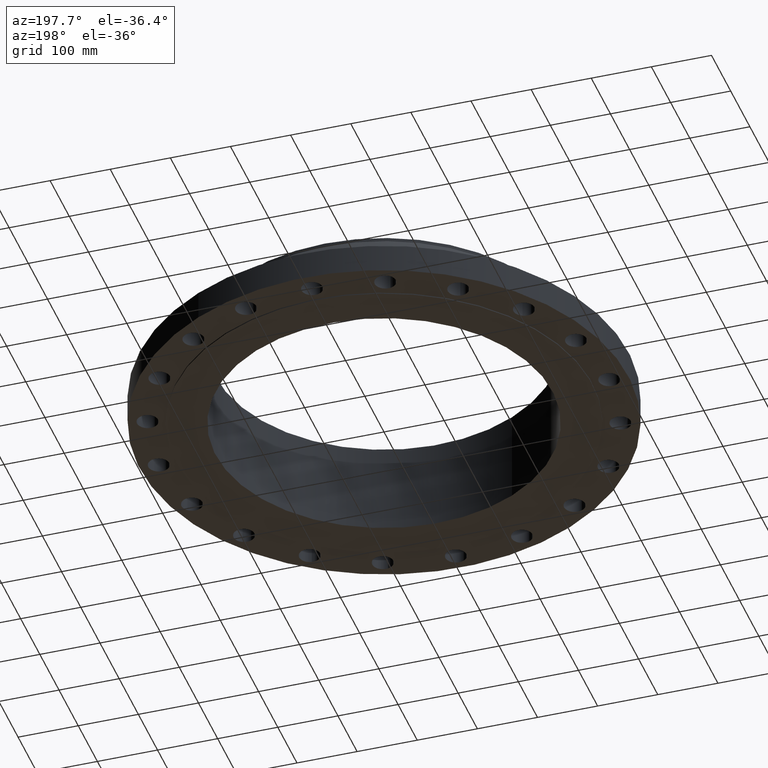
[diagram: clean part render]
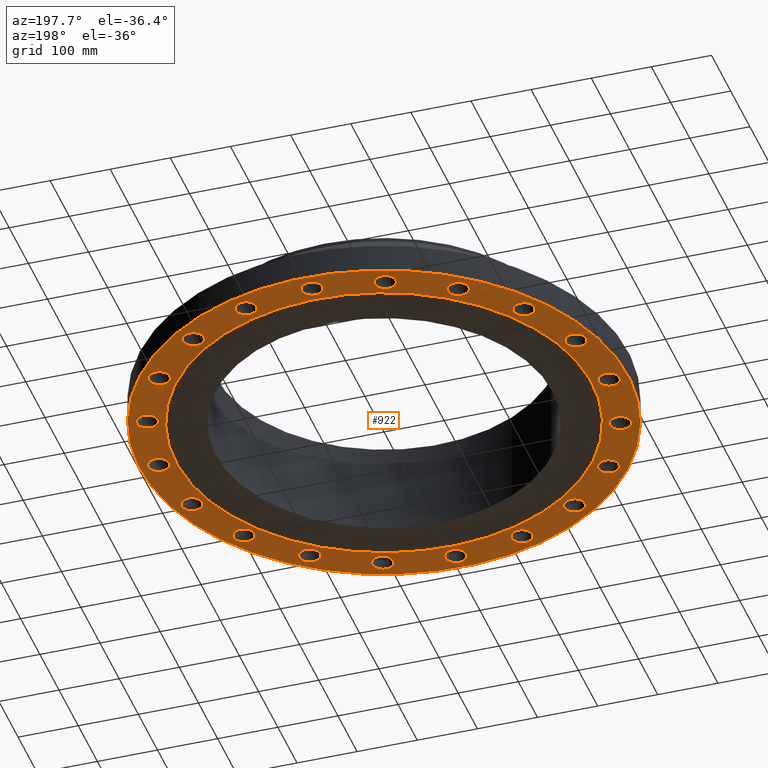
[diagram: same view with one face highlighted and labeled with its STEP entity id]
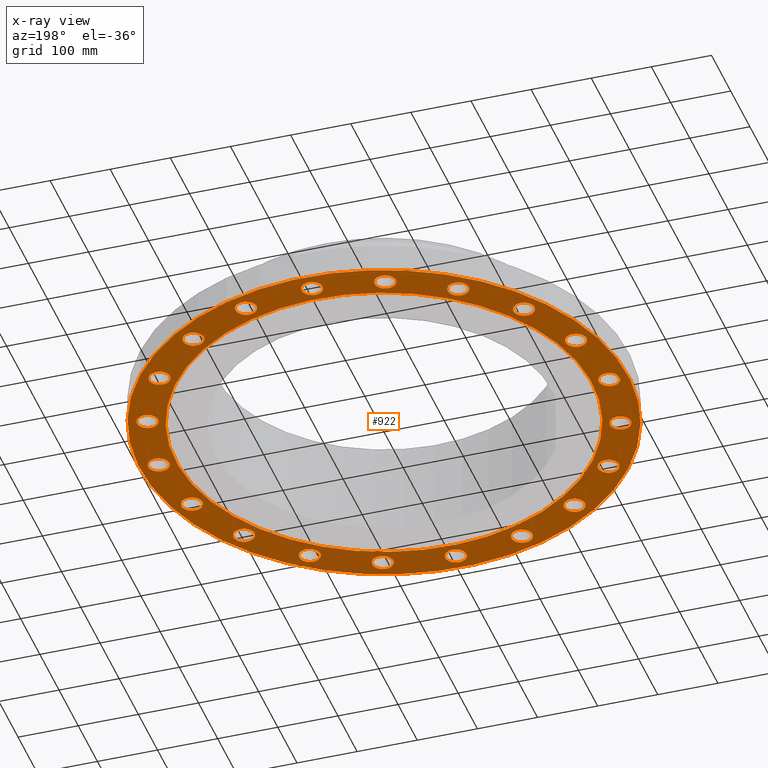
[diagram: x-ray of the same camera — body ghosted, the highlighted face saturated]
A machine part, auxiliary view. The second image highlights one B-rep face of the part: STEP entity #922.
The next image is the same camera in x-ray: the body ghosted, the highlighted face saturated — about 0% of this face is hidden behind the body in this view.
In plain terms, the highlighted planar face has unit normal (0, 0, -1).
Its self-contained STEP definition (entity closure, byte-faithful):
#51=AXIS2_PLACEMENT_3D('Circle Axis2P3D',#49,#50,$) ;
#77=AXIS2_PLACEMENT_3D('Circle Axis2P3D',#75,#76,$) ;
#99=AXIS2_PLACEMENT_3D('Circle Axis2P3D',#97,#98,$) ;
#134=AXIS2_PLACEMENT_3D('Circle Axis2P3D',#132,#133,$) ;
#534=AXIS2_PLACEMENT_3D('Circle Axis2P3D',#532,#533,$) ;
#553=AXIS2_PLACEMENT_3D('Circle Axis2P3D',#551,#552,$) ;
#566=AXIS2_PLACEMENT_3D('Plane Axis2P3D',#563,#564,#565) ;
#582=AXIS2_PLACEMENT_3D('Circle Axis2P3D',#580,#581,$) ;
#591=AXIS2_PLACEMENT_3D('Circle Axis2P3D',#589,#590,$) ;
#600=AXIS2_PLACEMENT_3D('Circle Axis2P3D',#598,#599,$) ;
#609=AXIS2_PLACEMENT_3D('Circle Axis2P3D',#607,#608,$) ;
#618=AXIS2_PLACEMENT_3D('Circle Axis2P3D',#616,#617,$) ;
#627=AXIS2_PLACEMENT_3D('Circle Axis2P3D',#625,#626,$) ;
#636=AXIS2_PLACEMENT_3D('Circle Axis2P3D',#634,#635,$) ;
#645=AXIS2_PLACEMENT_3D('Circle Axis2P3D',#643,#644,$) ;
#654=AXIS2_PLACEMENT_3D('Circle Axis2P3D',#652,#653,$) ;
#663=AXIS2_PLACEMENT_3D('Circle Axis2P3D',#661,#662,$) ;
#672=AXIS2_PLACEMENT_3D('Circle Axis2P3D',#670,#671,$) ;
#681=AXIS2_PLACEMENT_3D('Circle Axis2P3D',#679,#680,$) ;
#690=AXIS2_PLACEMENT_3D('Circle Axis2P3D',#688,#689,$) ;
#699=AXIS2_PLACEMENT_3D('Circle Axis2P3D',#697,#698,$) ;
#708=AXIS2_PLACEMENT_3D('Circle Axis2P3D',#706,#707,$) ;
#717=AXIS2_PLACEMENT_3D('Circle Axis2P3D',#715,#716,$) ;
#726=AXIS2_PLACEMENT_3D('Circle Axis2P3D',#724,#725,$) ;
#735=AXIS2_PLACEMENT_3D('Circle Axis2P3D',#733,#734,$) ;
#744=AXIS2_PLACEMENT_3D('Circle Axis2P3D',#742,#743,$) ;
#753=AXIS2_PLACEMENT_3D('Circle Axis2P3D',#751,#752,$) ;
#762=AXIS2_PLACEMENT_3D('Circle Axis2P3D',#760,#761,$) ;
#771=AXIS2_PLACEMENT_3D('Circle Axis2P3D',#769,#770,$) ;
#780=AXIS2_PLACEMENT_3D('Circle Axis2P3D',#778,#779,$) ;
#789=AXIS2_PLACEMENT_3D('Circle Axis2P3D',#787,#788,$) ;
#798=AXIS2_PLACEMENT_3D('Circle Axis2P3D',#796,#797,$) ;
#807=AXIS2_PLACEMENT_3D('Circle Axis2P3D',#805,#806,$) ;
#816=AXIS2_PLACEMENT_3D('Circle Axis2P3D',#814,#815,$) ;
#825=AXIS2_PLACEMENT_3D('Circle Axis2P3D',#823,#824,$) ;
#834=AXIS2_PLACEMENT_3D('Circle Axis2P3D',#832,#833,$) ;
#843=AXIS2_PLACEMENT_3D('Circle Axis2P3D',#841,#842,$) ;
#852=AXIS2_PLACEMENT_3D('Circle Axis2P3D',#850,#851,$) ;
#861=AXIS2_PLACEMENT_3D('Circle Axis2P3D',#859,#860,$) ;
#870=AXIS2_PLACEMENT_3D('Circle Axis2P3D',#868,#869,$) ;
#879=AXIS2_PLACEMENT_3D('Circle Axis2P3D',#877,#878,$) ;
#888=AXIS2_PLACEMENT_3D('Circle Axis2P3D',#886,#887,$) ;
#897=AXIS2_PLACEMENT_3D('Circle Axis2P3D',#895,#896,$) ;
#906=AXIS2_PLACEMENT_3D('Circle Axis2P3D',#904,#905,$) ;
#915=AXIS2_PLACEMENT_3D('Circle Axis2P3D',#913,#914,$) ;
#44=CARTESIAN_POINT('Vertex',(14.1444680324,0.330803621638,0.)) ;
#49=CARTESIAN_POINT('Axis2P3D Location',(14.7500000001,0.,0.)) ;
#53=CARTESIAN_POINT('Vertex',(15.3555319678,-0.330803621638,0.)) ;
#75=CARTESIAN_POINT('Axis2P3D Location',(14.7500000001,0.,0.)) ;
#97=CARTESIAN_POINT('Axis2P3D Location',(0.,0.,1.67844740731E-015)) ;
#101=CARTESIAN_POINT('Vertex',(-7.6708086177,-14.0413209903,2.23792987641E-015)) ;
#103=CARTESIAN_POINT('Vertex',(7.6708086177,14.0413209903,2.23792987641E-015)) ;
#132=CARTESIAN_POINT('Axis2P3D Location',(0.,0.,1.67844740731E-015)) ;
#529=CARTESIAN_POINT('Vertex',(-6.53217296351,-11.9570624058,2.23792987641E-015)) ;
#532=CARTESIAN_POINT('Axis2P3D Location',(0.,0.,1.67844740731E-015)) ;
#536=CARTESIAN_POINT('Vertex',(6.53217296351,11.9570624058,2.23792987641E-015)) ;
#551=CARTESIAN_POINT('Axis2P3D Location',(0.,0.,1.67844740731E-015)) ;
#563=CARTESIAN_POINT('Axis2P3D Location',(0.,13.6250000001,0.)) ;
#580=CARTESIAN_POINT('Axis2P3D Location',(14.0280836154,-4.55800066705,0.)) ;
#584=CARTESIAN_POINT('Vertex',(13.5544124326,-4.05626805842,0.)) ;
#586=CARTESIAN_POINT('Vertex',(14.5017547982,-5.05973327568,0.)) ;
#589=CARTESIAN_POINT('Axis2P3D Location',(14.0280836154,-4.55800066705,0.)) ;
#598=CARTESIAN_POINT('Axis2P3D Location',(11.9330006671,-8.66983247135,0.)) ;
#602=CARTESIAN_POINT('Vertex',(11.6375565048,-8.04628395923,0.)) ;
#604=CARTESIAN_POINT('Vertex',(12.2284448294,-9.29338098346,-1.95818864186E-015)) ;
#607=CARTESIAN_POINT('Axis2P3D Location',(11.9330006671,-8.66983247135,0.)) ;
#616=CARTESIAN_POINT('Axis2P3D Location',(8.66983247135,-11.9330006671,0.)) ;
#620=CARTESIAN_POINT('Vertex',(8.58153546265,-11.2486735244,0.)) ;
#622=CARTESIAN_POINT('Vertex',(8.75812948005,-12.6173278098,0.)) ;
#625=CARTESIAN_POINT('Axis2P3D Location',(8.66983247135,-11.9330006671,0.)) ;
#634=CARTESIAN_POINT('Axis2P3D Location',(4.55800066705,-14.0280836154,0.)) ;
#638=CARTESIAN_POINT('Vertex',(4.68549393836,-13.3499645508,0.)) ;
#640=CARTESIAN_POINT('Vertex',(4.43050739573,-14.70620268,0.)) ;
#643=CARTESIAN_POINT('Axis2P3D Location',(4.55800066705,-14.0280836154,0.)) ;
#652=CARTESIAN_POINT('Axis2P3D Location',(4.12618320963E-015,-14.7500000001,0.)) ;
#656=CARTESIAN_POINT('Vertex',(0.330803621638,-14.1444680324,0.)) ;
#658=CARTESIAN_POINT('Vertex',(-0.330803621638,-15.3555319678,0.)) ;
#661=CARTESIAN_POINT('Axis2P3D Location',(4.33598913554E-015,-14.7500000001,0.)) ;
#670=CARTESIAN_POINT('Axis2P3D Location',(-4.55800066705,-14.0280836154,0.)) ;
#674=CARTESIAN_POINT('Vertex',(-4.05626805842,-13.5544124326,0.)) ;
#676=CARTESIAN_POINT('Vertex',(-5.05973327568,-14.5017547982,0.)) ;
#679=CARTESIAN_POINT('Axis2P3D Location',(-4.55800066705,-14.0280836154,0.)) ;
#688=CARTESIAN_POINT('Axis2P3D Location',(-8.66983247135,-11.9330006671,0.)) ;
#692=CARTESIAN_POINT('Vertex',(-8.04628395923,-11.6375565048,0.)) ;
#694=CARTESIAN_POINT('Vertex',(-9.29338098346,-12.2284448294,0.)) ;
#697=CARTESIAN_POINT('Axis2P3D Location',(-8.66983247135,-11.9330006671,0.)) ;
#706=CARTESIAN_POINT('Axis2P3D Location',(-11.9330006671,-8.66983247135,0.)) ;
#710=CARTESIAN_POINT('Vertex',(-11.2486735244,-8.58153546265,0.)) ;
#712=CARTESIAN_POINT('Vertex',(-12.6173278098,-8.75812948005,0.)) ;
#715=CARTESIAN_POINT('Axis2P3D Location',(-11.9330006671,-8.66983247135,0.)) ;
#724=CARTESIAN_POINT('Axis2P3D Location',(-14.0280836154,-4.55800066705,0.)) ;
#728=CARTESIAN_POINT('Vertex',(-13.3499645508,-4.68549393836,0.)) ;
#730=CARTESIAN_POINT('Vertex',(-14.70620268,-4.43050739573,0.)) ;
#733=CARTESIAN_POINT('Axis2P3D Location',(-14.0280836154,-4.55800066705,0.)) ;
#742=CARTESIAN_POINT('Axis2P3D Location',(-14.7500000001,-8.95171950564E-015,0.)) ;
#746=CARTESIAN_POINT('Vertex',(-14.1444680324,-0.330803621638,0.)) ;
#748=CARTESIAN_POINT('Vertex',(-15.3555319678,0.330803621638,0.)) ;
#751=CARTESIAN_POINT('Axis2P3D Location',(-14.7500000001,-8.95171950564E-015,0.)) ;
#760=CARTESIAN_POINT('Axis2P3D Location',(-14.0280836154,4.55800066705,0.)) ;
#764=CARTESIAN_POINT('Vertex',(-13.5544124326,4.05626805842,0.)) ;
#766=CARTESIAN_POINT('Vertex',(-14.5017547982,5.05973327568,0.)) ;
#769=CARTESIAN_POINT('Axis2P3D Location',(-14.0280836154,4.55800066705,0.)) ;
#778=CARTESIAN_POINT('Axis2P3D Location',(-11.9330006671,8.66983247135,0.)) ;
#782=CARTESIAN_POINT('Vertex',(-11.6375565048,8.04628395923,0.)) ;
#784=CARTESIAN_POINT('Vertex',(-12.2284448294,9.29338098346,-1.95818864186E-015)) ;
#787=CARTESIAN_POINT('Axis2P3D Location',(-11.9330006671,8.66983247135,0.)) ;
#796=CARTESIAN_POINT('Axis2P3D Location',(-8.66983247135,11.9330006671,0.)) ;
#800=CARTESIAN_POINT('Vertex',(-8.58153546265,11.2486735244,0.)) ;
#802=CARTESIAN_POINT('Vertex',(-8.75812948005,12.6173278098,0.)) ;
#805=CARTESIAN_POINT('Axis2P3D Location',(-8.66983247135,11.9330006671,0.)) ;
#814=CARTESIAN_POINT('Axis2P3D Location',(-4.55800066705,14.0280836154,0.)) ;
#818=CARTESIAN_POINT('Vertex',(-4.68549393836,13.3499645508,0.)) ;
#820=CARTESIAN_POINT('Vertex',(-4.43050739573,14.70620268,-1.95818864186E-015)) ;
#823=CARTESIAN_POINT('Axis2P3D Location',(-4.55800066705,14.0280836154,0.)) ;
#832=CARTESIAN_POINT('Axis2P3D Location',(-1.61550562953E-014,14.7500000001,0.)) ;
#836=CARTESIAN_POINT('Vertex',(-0.330803621638,14.1444680324,0.)) ;
#838=CARTESIAN_POINT('Vertex',(0.330803621638,15.3555319678,0.)) ;
#841=CARTESIAN_POINT('Axis2P3D Location',(-1.5455703209E-014,14.7500000001,0.)) ;
#850=CARTESIAN_POINT('Axis2P3D Location',(4.55800066705,14.0280836154,0.)) ;
#854=CARTESIAN_POINT('Vertex',(4.05626805842,13.5544124326,0.)) ;
#856=CARTESIAN_POINT('Vertex',(5.05973327568,14.5017547982,-1.95818864186E-015)) ;
#859=CARTESIAN_POINT('Axis2P3D Location',(4.55800066705,14.0280836154,0.)) ;
#868=CARTESIAN_POINT('Axis2P3D Location',(8.66983247135,11.9330006671,0.)) ;
#872=CARTESIAN_POINT('Vertex',(8.04628395923,11.6375565048,0.)) ;
#874=CARTESIAN_POINT('Vertex',(9.29338098346,12.2284448294,0.)) ;
#877=CARTESIAN_POINT('Axis2P3D Location',(8.66983247135,11.9330006671,0.)) ;
#886=CARTESIAN_POINT('Axis2P3D Location',(11.9330006671,8.66983247135,0.)) ;
#890=CARTESIAN_POINT('Vertex',(11.2486735244,8.58153546265,0.)) ;
#892=CARTESIAN_POINT('Vertex',(12.6173278098,8.75812948005,0.)) ;
#895=CARTESIAN_POINT('Axis2P3D Location',(11.9330006671,8.66983247135,0.)) ;
#904=CARTESIAN_POINT('Axis2P3D Location',(14.0280836154,4.55800066705,0.)) ;
#908=CARTESIAN_POINT('Vertex',(13.3499645508,4.68549393836,0.)) ;
#910=CARTESIAN_POINT('Vertex',(14.70620268,4.43050739573,-1.95818864186E-015)) ;
#913=CARTESIAN_POINT('Axis2P3D Location',(14.0280836154,4.55800066705,0.)) ;
#50=DIRECTION('Axis2P3D Direction',(0.,-0.,-0.0393700787402)) ;
#76=DIRECTION('Axis2P3D Direction',(0.,-0.,-0.0393700787402)) ;
#98=DIRECTION('Axis2P3D Direction',(0.,0.,-0.0393700787402)) ;
#133=DIRECTION('Axis2P3D Direction',(0.,0.,-0.0393700787402)) ;
#533=DIRECTION('Axis2P3D Direction',(0.,0.,-0.0393700787402)) ;
#552=DIRECTION('Axis2P3D Direction',(0.,0.,-0.0393700787402)) ;
#564=DIRECTION('Axis2P3D Direction',(0.,0.,-0.0393700787402)) ;
#565=DIRECTION('Axis2P3D XDirection',(0.0393700787402,0.,0.)) ;
#581=DIRECTION('Axis2P3D Direction',(0.,0.,-0.0393700787402)) ;
#590=DIRECTION('Axis2P3D Direction',(0.,0.,-0.0393700787402)) ;
#599=DIRECTION('Axis2P3D Direction',(0.,0.,-0.0393700787402)) ;
#608=DIRECTION('Axis2P3D Direction',(0.,0.,-0.0393700787402)) ;
#617=DIRECTION('Axis2P3D Direction',(0.,0.,-0.0393700787402)) ;
#626=DIRECTION('Axis2P3D Direction',(0.,0.,-0.0393700787402)) ;
#635=DIRECTION('Axis2P3D Direction',(0.,0.,-0.0393700787402)) ;
#644=DIRECTION('Axis2P3D Direction',(0.,0.,-0.0393700787402)) ;
#653=DIRECTION('Axis2P3D Direction',(0.,0.,-0.0393700787402)) ;
#662=DIRECTION('Axis2P3D Direction',(0.,0.,-0.0393700787402)) ;
#671=DIRECTION('Axis2P3D Direction',(0.,0.,-0.0393700787402)) ;
#680=DIRECTION('Axis2P3D Direction',(0.,0.,-0.0393700787402)) ;
#689=DIRECTION('Axis2P3D Direction',(0.,0.,-0.0393700787402)) ;
#698=DIRECTION('Axis2P3D Direction',(0.,0.,-0.0393700787402)) ;
#707=DIRECTION('Axis2P3D Direction',(0.,0.,-0.0393700787402)) ;
#716=DIRECTION('Axis2P3D Direction',(0.,0.,-0.0393700787402)) ;
#725=DIRECTION('Axis2P3D Direction',(0.,0.,-0.0393700787402)) ;
#734=DIRECTION('Axis2P3D Direction',(0.,0.,-0.0393700787402)) ;
#743=DIRECTION('Axis2P3D Direction',(0.,0.,-0.0393700787402)) ;
#752=DIRECTION('Axis2P3D Direction',(0.,0.,-0.0393700787402)) ;
#761=DIRECTION('Axis2P3D Direction',(0.,0.,-0.0393700787402)) ;
#770=DIRECTION('Axis2P3D Direction',(0.,0.,-0.0393700787402)) ;
#779=DIRECTION('Axis2P3D Direction',(0.,0.,-0.0393700787402)) ;
#788=DIRECTION('Axis2P3D Direction',(0.,0.,-0.0393700787402)) ;
#797=DIRECTION('Axis2P3D Direction',(0.,0.,-0.0393700787402)) ;
#806=DIRECTION('Axis2P3D Direction',(0.,0.,-0.0393700787402)) ;
#815=DIRECTION('Axis2P3D Direction',(0.,0.,-0.0393700787402)) ;
#824=DIRECTION('Axis2P3D Direction',(0.,0.,-0.0393700787402)) ;
#833=DIRECTION('Axis2P3D Direction',(0.,0.,-0.0393700787402)) ;
#842=DIRECTION('Axis2P3D Direction',(0.,0.,-0.0393700787402)) ;
#851=DIRECTION('Axis2P3D Direction',(0.,0.,-0.0393700787402)) ;
#860=DIRECTION('Axis2P3D Direction',(0.,0.,-0.0393700787402)) ;
#869=DIRECTION('Axis2P3D Direction',(0.,0.,-0.0393700787402)) ;
#878=DIRECTION('Axis2P3D Direction',(0.,0.,-0.0393700787402)) ;
#887=DIRECTION('Axis2P3D Direction',(0.,0.,-0.0393700787402)) ;
#896=DIRECTION('Axis2P3D Direction',(0.,0.,-0.0393700787402)) ;
#905=DIRECTION('Axis2P3D Direction',(0.,0.,-0.0393700787402)) ;
#914=DIRECTION('Axis2P3D Direction',(0.,0.,-0.0393700787402)) ;
#569=ORIENTED_EDGE('',*,*,#105,.T.) ;
#570=ORIENTED_EDGE('',*,*,#136,.T.) ;
#573=ORIENTED_EDGE('',*,*,#79,.F.) ;
#574=ORIENTED_EDGE('',*,*,#55,.F.) ;
#577=ORIENTED_EDGE('',*,*,#555,.F.) ;
#578=ORIENTED_EDGE('',*,*,#538,.F.) ;
#595=ORIENTED_EDGE('',*,*,#588,.F.) ;
#596=ORIENTED_EDGE('',*,*,#593,.F.) ;
#613=ORIENTED_EDGE('',*,*,#606,.F.) ;
#614=ORIENTED_EDGE('',*,*,#611,.F.) ;
#631=ORIENTED_EDGE('',*,*,#624,.F.) ;
#632=ORIENTED_EDGE('',*,*,#629,.F.) ;
#649=ORIENTED_EDGE('',*,*,#642,.F.) ;
#650=ORIENTED_EDGE('',*,*,#647,.F.) ;
#667=ORIENTED_EDGE('',*,*,#660,.F.) ;
#668=ORIENTED_EDGE('',*,*,#665,.F.) ;
#685=ORIENTED_EDGE('',*,*,#678,.F.) ;
#686=ORIENTED_EDGE('',*,*,#683,.F.) ;
#703=ORIENTED_EDGE('',*,*,#696,.F.) ;
#704=ORIENTED_EDGE('',*,*,#701,.F.) ;
#721=ORIENTED_EDGE('',*,*,#714,.F.) ;
#722=ORIENTED_EDGE('',*,*,#719,.F.) ;
#739=ORIENTED_EDGE('',*,*,#732,.F.) ;
#740=ORIENTED_EDGE('',*,*,#737,.F.) ;
#757=ORIENTED_EDGE('',*,*,#750,.F.) ;
#758=ORIENTED_EDGE('',*,*,#755,.F.) ;
#775=ORIENTED_EDGE('',*,*,#768,.F.) ;
#776=ORIENTED_EDGE('',*,*,#773,.F.) ;
#793=ORIENTED_EDGE('',*,*,#786,.F.) ;
#794=ORIENTED_EDGE('',*,*,#791,.F.) ;
#811=ORIENTED_EDGE('',*,*,#804,.F.) ;
#812=ORIENTED_EDGE('',*,*,#809,.F.) ;
#829=ORIENTED_EDGE('',*,*,#822,.F.) ;
#830=ORIENTED_EDGE('',*,*,#827,.F.) ;
#847=ORIENTED_EDGE('',*,*,#840,.F.) ;
#848=ORIENTED_EDGE('',*,*,#845,.F.) ;
#865=ORIENTED_EDGE('',*,*,#858,.F.) ;
#866=ORIENTED_EDGE('',*,*,#863,.F.) ;
#883=ORIENTED_EDGE('',*,*,#876,.F.) ;
#884=ORIENTED_EDGE('',*,*,#881,.F.) ;
#901=ORIENTED_EDGE('',*,*,#894,.F.) ;
#902=ORIENTED_EDGE('',*,*,#899,.F.) ;
#919=ORIENTED_EDGE('',*,*,#912,.F.) ;
#920=ORIENTED_EDGE('',*,*,#917,.F.) ;
#575=FACE_BOUND('',#572,.T.) ;
#579=FACE_BOUND('',#576,.T.) ;
#597=FACE_BOUND('',#594,.T.) ;
#615=FACE_BOUND('',#612,.T.) ;
#633=FACE_BOUND('',#630,.T.) ;
#651=FACE_BOUND('',#648,.T.) ;
#669=FACE_BOUND('',#666,.T.) ;
#687=FACE_BOUND('',#684,.T.) ;
#705=FACE_BOUND('',#702,.T.) ;
#723=FACE_BOUND('',#720,.T.) ;
#741=FACE_BOUND('',#738,.T.) ;
#759=FACE_BOUND('',#756,.T.) ;
#777=FACE_BOUND('',#774,.T.) ;
#795=FACE_BOUND('',#792,.T.) ;
#813=FACE_BOUND('',#810,.T.) ;
#831=FACE_BOUND('',#828,.T.) ;
#849=FACE_BOUND('',#846,.T.) ;
#867=FACE_BOUND('',#864,.T.) ;
#885=FACE_BOUND('',#882,.T.) ;
#903=FACE_BOUND('',#900,.T.) ;
#921=FACE_BOUND('',#918,.T.) ;
#922=ADVANCED_FACE('PartBody',(#571,#575,#579,#597,#615,#633,#651,#669,#687,#705,#723,#741,#759,#777,#795,#813,#831,#849,#867,#885,#903,#921),#567,.T.) ;
#52=CIRCLE('generated circle',#51,0.690000000003) ;
#78=CIRCLE('generated circle',#77,0.690000000003) ;
#100=CIRCLE('generated circle',#99,16.0000000001) ;
#135=CIRCLE('generated circle',#134,16.0000000001) ;
#535=CIRCLE('generated circle',#534,13.6250000001) ;
#554=CIRCLE('generated circle',#553,13.6250000001) ;
#583=CIRCLE('generated circle',#582,0.690000000003) ;
#592=CIRCLE('generated circle',#591,0.690000000003) ;
#601=CIRCLE('generated circle',#600,0.690000000003) ;
#610=CIRCLE('generated circle',#609,0.690000000003) ;
#619=CIRCLE('generated circle',#618,0.690000000003) ;
#628=CIRCLE('generated circle',#627,0.690000000003) ;
#637=CIRCLE('generated circle',#636,0.690000000003) ;
#646=CIRCLE('generated circle',#645,0.690000000003) ;
#655=CIRCLE('generated circle',#654,0.690000000003) ;
#664=CIRCLE('generated circle',#663,0.690000000003) ;
#673=CIRCLE('generated circle',#672,0.690000000003) ;
#682=CIRCLE('generated circle',#681,0.690000000003) ;
#691=CIRCLE('generated circle',#690,0.690000000003) ;
#700=CIRCLE('generated circle',#699,0.690000000003) ;
#709=CIRCLE('generated circle',#708,0.690000000003) ;
#718=CIRCLE('generated circle',#717,0.690000000003) ;
#727=CIRCLE('generated circle',#726,0.690000000003) ;
#736=CIRCLE('generated circle',#735,0.690000000003) ;
#745=CIRCLE('generated circle',#744,0.690000000003) ;
#754=CIRCLE('generated circle',#753,0.690000000003) ;
#763=CIRCLE('generated circle',#762,0.690000000003) ;
#772=CIRCLE('generated circle',#771,0.690000000003) ;
#781=CIRCLE('generated circle',#780,0.690000000003) ;
#790=CIRCLE('generated circle',#789,0.690000000003) ;
#799=CIRCLE('generated circle',#798,0.690000000003) ;
#808=CIRCLE('generated circle',#807,0.690000000003) ;
#817=CIRCLE('generated circle',#816,0.690000000003) ;
#826=CIRCLE('generated circle',#825,0.690000000003) ;
#835=CIRCLE('generated circle',#834,0.690000000003) ;
#844=CIRCLE('generated circle',#843,0.690000000003) ;
#853=CIRCLE('generated circle',#852,0.690000000003) ;
#862=CIRCLE('generated circle',#861,0.690000000003) ;
#871=CIRCLE('generated circle',#870,0.690000000003) ;
#880=CIRCLE('generated circle',#879,0.690000000003) ;
#889=CIRCLE('generated circle',#888,0.690000000003) ;
#898=CIRCLE('generated circle',#897,0.690000000003) ;
#907=CIRCLE('generated circle',#906,0.690000000003) ;
#916=CIRCLE('generated circle',#915,0.690000000003) ;
#55=EDGE_CURVE('',#45,#54,#52,.T.) ;
#79=EDGE_CURVE('',#54,#45,#78,.T.) ;
#105=EDGE_CURVE('',#102,#104,#100,.T.) ;
#136=EDGE_CURVE('',#104,#102,#135,.T.) ;
#538=EDGE_CURVE('',#530,#537,#535,.T.) ;
#555=EDGE_CURVE('',#537,#530,#554,.T.) ;
#588=EDGE_CURVE('',#585,#587,#583,.T.) ;
#593=EDGE_CURVE('',#587,#585,#592,.T.) ;
#606=EDGE_CURVE('',#603,#605,#601,.T.) ;
#611=EDGE_CURVE('',#605,#603,#610,.T.) ;
#624=EDGE_CURVE('',#621,#623,#619,.T.) ;
#629=EDGE_CURVE('',#623,#621,#628,.T.) ;
#642=EDGE_CURVE('',#639,#641,#637,.T.) ;
#647=EDGE_CURVE('',#641,#639,#646,.T.) ;
#660=EDGE_CURVE('',#657,#659,#655,.T.) ;
#665=EDGE_CURVE('',#659,#657,#664,.T.) ;
#678=EDGE_CURVE('',#675,#677,#673,.T.) ;
#683=EDGE_CURVE('',#677,#675,#682,.T.) ;
#696=EDGE_CURVE('',#693,#695,#691,.T.) ;
#701=EDGE_CURVE('',#695,#693,#700,.T.) ;
#714=EDGE_CURVE('',#711,#713,#709,.T.) ;
#719=EDGE_CURVE('',#713,#711,#718,.T.) ;
#732=EDGE_CURVE('',#729,#731,#727,.T.) ;
#737=EDGE_CURVE('',#731,#729,#736,.T.) ;
#750=EDGE_CURVE('',#747,#749,#745,.T.) ;
#755=EDGE_CURVE('',#749,#747,#754,.T.) ;
#768=EDGE_CURVE('',#765,#767,#763,.T.) ;
#773=EDGE_CURVE('',#767,#765,#772,.T.) ;
#786=EDGE_CURVE('',#783,#785,#781,.T.) ;
#791=EDGE_CURVE('',#785,#783,#790,.T.) ;
#804=EDGE_CURVE('',#801,#803,#799,.T.) ;
#809=EDGE_CURVE('',#803,#801,#808,.T.) ;
#822=EDGE_CURVE('',#819,#821,#817,.T.) ;
#827=EDGE_CURVE('',#821,#819,#826,.T.) ;
#840=EDGE_CURVE('',#837,#839,#835,.T.) ;
#845=EDGE_CURVE('',#839,#837,#844,.T.) ;
#858=EDGE_CURVE('',#855,#857,#853,.T.) ;
#863=EDGE_CURVE('',#857,#855,#862,.T.) ;
#876=EDGE_CURVE('',#873,#875,#871,.T.) ;
#881=EDGE_CURVE('',#875,#873,#880,.T.) ;
#894=EDGE_CURVE('',#891,#893,#889,.T.) ;
#899=EDGE_CURVE('',#893,#891,#898,.T.) ;
#912=EDGE_CURVE('',#909,#911,#907,.T.) ;
#917=EDGE_CURVE('',#911,#909,#916,.T.) ;
#568=EDGE_LOOP('',(#569,#570)) ;
#572=EDGE_LOOP('',(#573,#574)) ;
#576=EDGE_LOOP('',(#577,#578)) ;
#594=EDGE_LOOP('',(#595,#596)) ;
#612=EDGE_LOOP('',(#613,#614)) ;
#630=EDGE_LOOP('',(#631,#632)) ;
#648=EDGE_LOOP('',(#649,#650)) ;
#666=EDGE_LOOP('',(#667,#668)) ;
#684=EDGE_LOOP('',(#685,#686)) ;
#702=EDGE_LOOP('',(#703,#704)) ;
#720=EDGE_LOOP('',(#721,#722)) ;
#738=EDGE_LOOP('',(#739,#740)) ;
#756=EDGE_LOOP('',(#757,#758)) ;
#774=EDGE_LOOP('',(#775,#776)) ;
#792=EDGE_LOOP('',(#793,#794)) ;
#810=EDGE_LOOP('',(#811,#812)) ;
#828=EDGE_LOOP('',(#829,#830)) ;
#846=EDGE_LOOP('',(#847,#848)) ;
#864=EDGE_LOOP('',(#865,#866)) ;
#882=EDGE_LOOP('',(#883,#884)) ;
#900=EDGE_LOOP('',(#901,#902)) ;
#918=EDGE_LOOP('',(#919,#920)) ;
#571=FACE_OUTER_BOUND('',#568,.T.) ;
#567=PLANE('',#566) ;
#45=VERTEX_POINT('',#44) ;
#54=VERTEX_POINT('',#53) ;
#102=VERTEX_POINT('',#101) ;
#104=VERTEX_POINT('',#103) ;
#530=VERTEX_POINT('',#529) ;
#537=VERTEX_POINT('',#536) ;
#585=VERTEX_POINT('',#584) ;
#587=VERTEX_POINT('',#586) ;
#603=VERTEX_POINT('',#602) ;
#605=VERTEX_POINT('',#604) ;
#621=VERTEX_POINT('',#620) ;
#623=VERTEX_POINT('',#622) ;
#639=VERTEX_POINT('',#638) ;
#641=VERTEX_POINT('',#640) ;
#657=VERTEX_POINT('',#656) ;
#659=VERTEX_POINT('',#658) ;
#675=VERTEX_POINT('',#674) ;
#677=VERTEX_POINT('',#676) ;
#693=VERTEX_POINT('',#692) ;
#695=VERTEX_POINT('',#694) ;
#711=VERTEX_POINT('',#710) ;
#713=VERTEX_POINT('',#712) ;
#729=VERTEX_POINT('',#728) ;
#731=VERTEX_POINT('',#730) ;
#747=VERTEX_POINT('',#746) ;
#749=VERTEX_POINT('',#748) ;
#765=VERTEX_POINT('',#764) ;
#767=VERTEX_POINT('',#766) ;
#783=VERTEX_POINT('',#782) ;
#785=VERTEX_POINT('',#784) ;
#801=VERTEX_POINT('',#800) ;
#803=VERTEX_POINT('',#802) ;
#819=VERTEX_POINT('',#818) ;
#821=VERTEX_POINT('',#820) ;
#837=VERTEX_POINT('',#836) ;
#839=VERTEX_POINT('',#838) ;
#855=VERTEX_POINT('',#854) ;
#857=VERTEX_POINT('',#856) ;
#873=VERTEX_POINT('',#872) ;
#875=VERTEX_POINT('',#874) ;
#891=VERTEX_POINT('',#890) ;
#893=VERTEX_POINT('',#892) ;
#909=VERTEX_POINT('',#908) ;
#911=VERTEX_POINT('',#910) ;